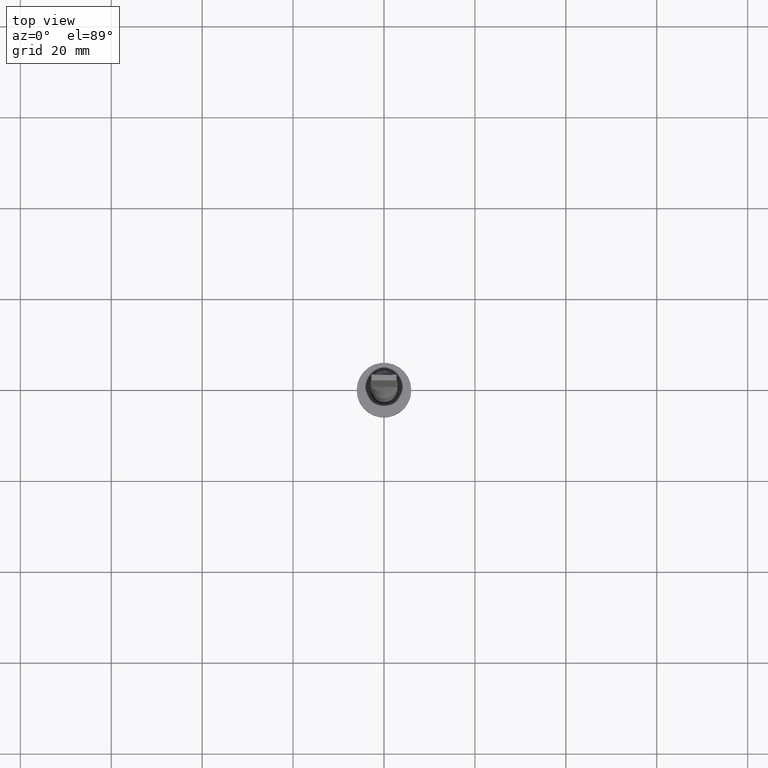
[diagram: clean part render]
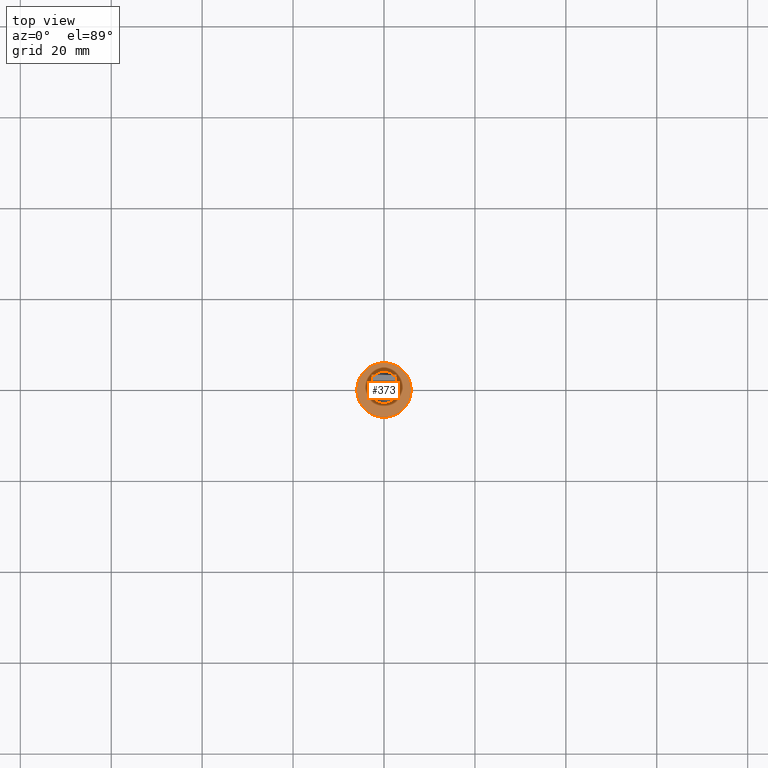
[diagram: same view with one face highlighted and labeled with its STEP entity id]
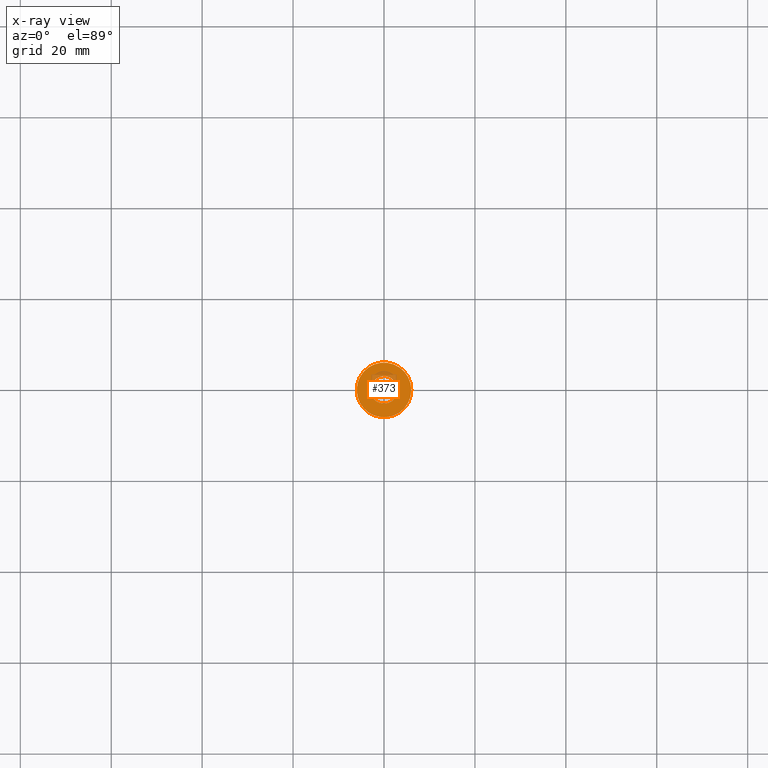
[diagram: x-ray of the same camera — body ghosted, the highlighted face saturated]
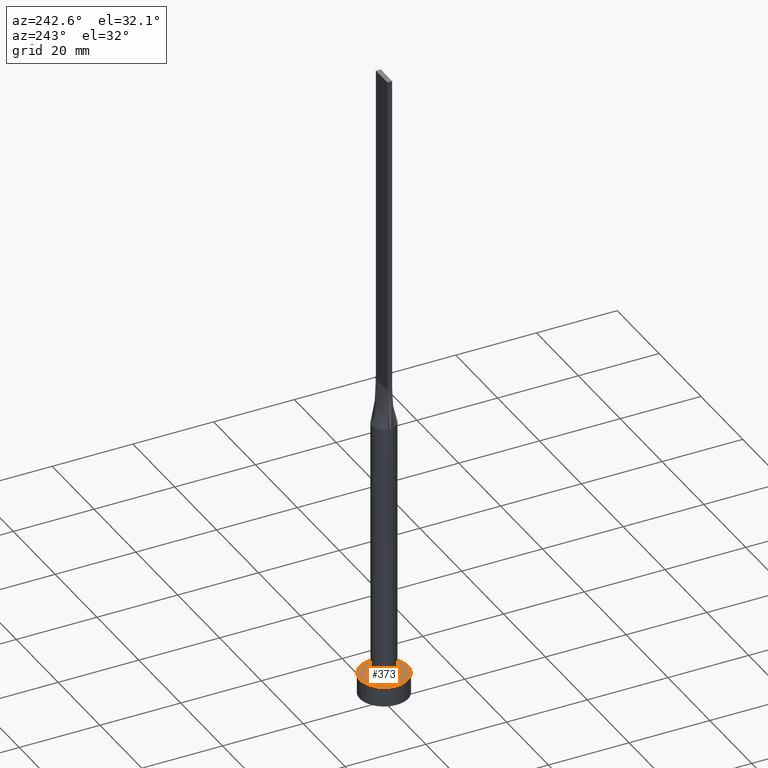
[diagram: same view with one face highlighted and labeled with its STEP entity id]
A machine part, top view. The second image highlights one B-rep face of the part: STEP entity #373.
The next image is the same camera in x-ray: the body ghosted, the highlighted face saturated — about 9% of this face is hidden behind the body in this view.
A second angle (auxiliary view) of the same face is appended — the face is thin or edge-on in the first view.
In plain terms, the highlighted planar face has unit normal (0, 0, 1).
Its self-contained STEP definition (entity closure, byte-faithful):
#7 = FACE_BOUND ( 'NONE', #147, .T. ) ;
#9 = CARTESIAN_POINT ( 'NONE',  ( 6.000000000000000888, 7.347880794884120722E-16, 5.000000000000000000 ) ) ;
#10 = CIRCLE ( 'NONE', #400, 6.000000000000000888 ) ;
#11 = DIRECTION ( 'NONE',  ( 1.000000000000000000, 0.000000000000000000, -0.000000000000000000 ) ) ;
#50 = CARTESIAN_POINT ( 'NONE',  ( -6.000000000000000888, 0.000000000000000000, 5.000000000000000000 ) ) ;
#59 = DIRECTION ( 'NONE',  ( 0.000000000000000000, 0.000000000000000000, 1.000000000000000000 ) ) ;
#69 = AXIS2_PLACEMENT_3D ( 'NONE', #183, #59, #333 ) ;
#85 = DIRECTION ( 'NONE',  ( 1.000000000000000000, 0.000000000000000000, 0.000000000000000000 ) ) ;
#112 = VERTEX_POINT ( 'NONE', #276 ) ;
#125 = CARTESIAN_POINT ( 'NONE',  ( 0.000000000000000000, 0.000000000000000000, 5.000000000000000000 ) ) ;
#134 = AXIS2_PLACEMENT_3D ( 'NONE', #269, #497, #443 ) ;
#137 = FACE_OUTER_BOUND ( 'NONE', #248, .T. ) ;
#138 = EDGE_CURVE ( 'NONE', #112, #571, #580, .T. ) ;
#140 = ORIENTED_EDGE ( 'NONE', *, *, #138, .F. ) ;
#147 = EDGE_LOOP ( 'NONE', ( #157, #140 ) ) ;
#157 = ORIENTED_EDGE ( 'NONE', *, *, #491, .F. ) ;
#159 = CIRCLE ( 'NONE', #134, 3.000000000000000444 ) ;
#175 = AXIS2_PLACEMENT_3D ( 'NONE', #125, #545, #11 ) ;
#183 = CARTESIAN_POINT ( 'NONE',  ( 0.000000000000000000, 0.000000000000000000, 5.000000000000000000 ) ) ;
#186 = PLANE ( 'NONE',  #175 ) ;
#198 = VERTEX_POINT ( 'NONE', #9 ) ;
#203 = DIRECTION ( 'NONE',  ( 0.000000000000000000, 0.000000000000000000, 1.000000000000000000 ) ) ;
#248 = EDGE_LOOP ( 'NONE', ( #525, #251 ) ) ;
#251 = ORIENTED_EDGE ( 'NONE', *, *, #519, .T. ) ;
#269 = CARTESIAN_POINT ( 'NONE',  ( 0.000000000000000000, 0.000000000000000000, 5.000000000000000000 ) ) ;
#276 = CARTESIAN_POINT ( 'NONE',  ( 3.000000000000000444, 3.673940397442060361E-16, 5.000000000000000000 ) ) ;
#333 = DIRECTION ( 'NONE',  ( 1.000000000000000000, 0.000000000000000000, 0.000000000000000000 ) ) ;
#373 = ADVANCED_FACE ( 'NONE', ( #7, #137 ), #186, .T. ) ;
#400 = AXIS2_PLACEMENT_3D ( 'NONE', #489, #448, #85 ) ;
#417 = CARTESIAN_POINT ( 'NONE',  ( -3.000000000000000444, 0.000000000000000000, 5.000000000000000000 ) ) ;
#425 = DIRECTION ( 'NONE',  ( 1.000000000000000000, 0.000000000000000000, 0.000000000000000000 ) ) ;
#443 = DIRECTION ( 'NONE',  ( 1.000000000000000000, 0.000000000000000000, 0.000000000000000000 ) ) ;
#448 = DIRECTION ( 'NONE',  ( 0.000000000000000000, 0.000000000000000000, 1.000000000000000000 ) ) ;
#449 = EDGE_CURVE ( 'NONE', #503, #198, #10, .T. ) ;
#489 = CARTESIAN_POINT ( 'NONE',  ( 0.000000000000000000, 0.000000000000000000, 5.000000000000000000 ) ) ;
#491 = EDGE_CURVE ( 'NONE', #571, #112, #159, .T. ) ;
#497 = DIRECTION ( 'NONE',  ( 0.000000000000000000, 0.000000000000000000, 1.000000000000000000 ) ) ;
#503 = VERTEX_POINT ( 'NONE', #50 ) ;
#519 = EDGE_CURVE ( 'NONE', #198, #503, #520, .T. ) ;
#520 = CIRCLE ( 'NONE', #527, 6.000000000000000888 ) ;
#525 = ORIENTED_EDGE ( 'NONE', *, *, #449, .T. ) ;
#527 = AXIS2_PLACEMENT_3D ( 'NONE', #547, #203, #425 ) ;
#545 = DIRECTION ( 'NONE',  ( 0.000000000000000000, 0.000000000000000000, 1.000000000000000000 ) ) ;
#547 = CARTESIAN_POINT ( 'NONE',  ( 0.000000000000000000, 0.000000000000000000, 5.000000000000000000 ) ) ;
#571 = VERTEX_POINT ( 'NONE', #417 ) ;
#580 = CIRCLE ( 'NONE', #69, 3.000000000000000444 ) ;